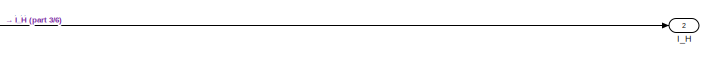
[diagram: root canvas - part 1/6, top center region]
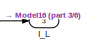
[diagram: root canvas - part 2/6, top right region]
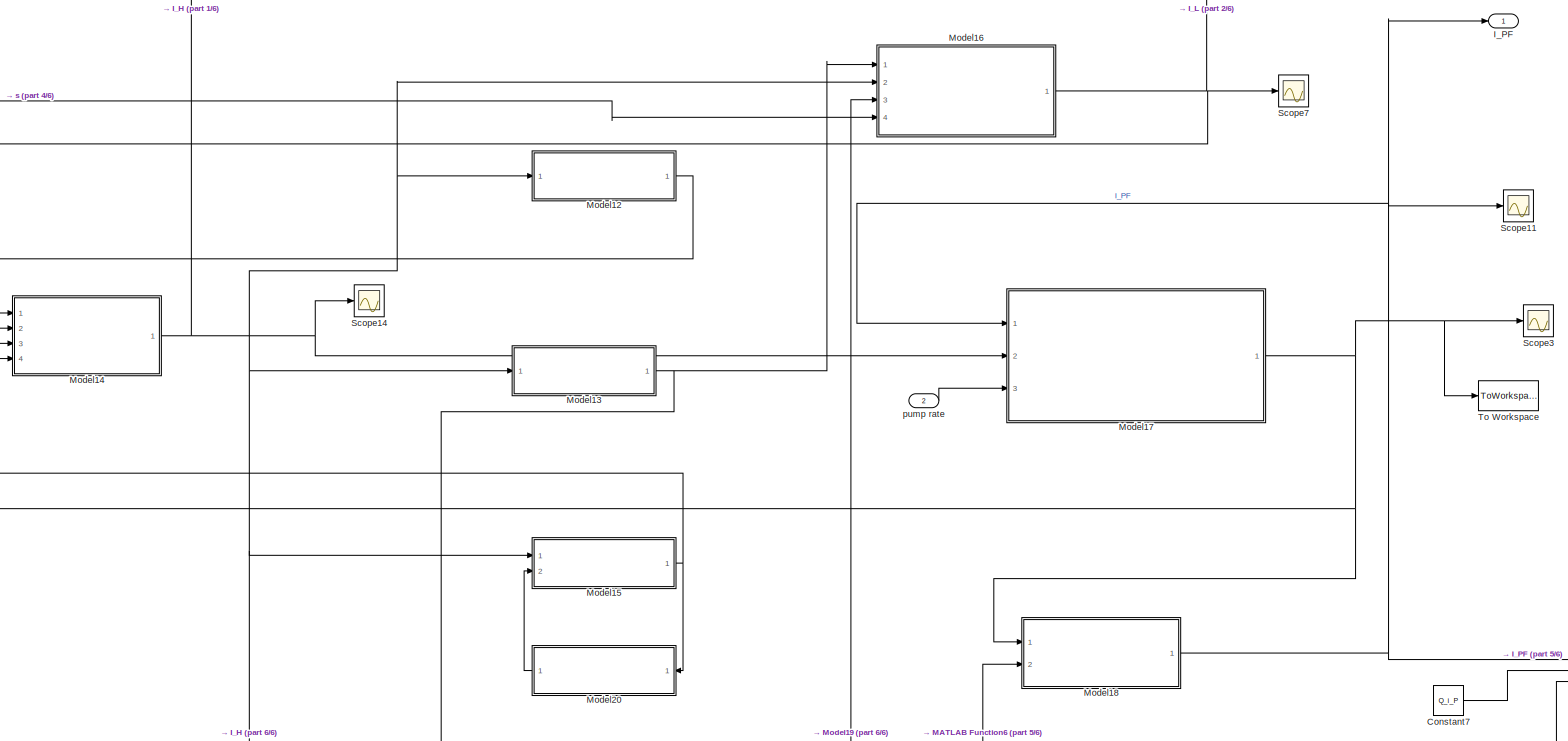
[diagram: root canvas - part 3/6, central region]
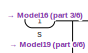
[diagram: root canvas - part 4/6, top left region]
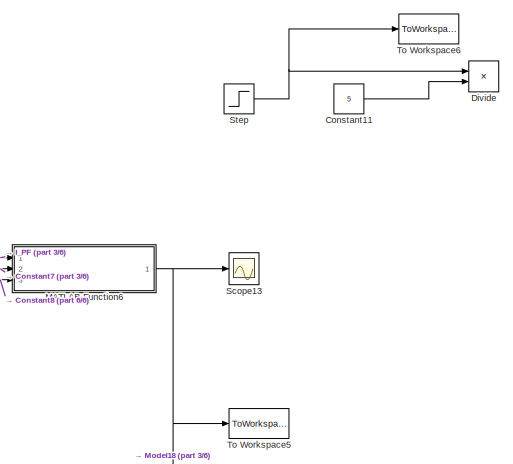
[diagram: root canvas - part 5/6, bottom right region]
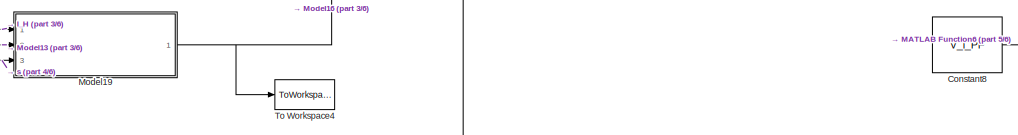
[diagram: root canvas - part 6/6, bottom center region]
MODEL slx_98b3772ca5cc
KIND model
CONFIG AbsTol = auto
CONFIG EnableMultiTasking = off
CONFIG FixedStep = auto
CONFIG MaxStep = auto
CONFIG MinStep = auto
CONFIG RelTol = 1e-3
CONFIG SampleTimeConstraint = Unconstrained
CONFIG Solver = VariableStepAuto
CONFIG SolverName = VariableStepAuto
CONFIG StartTime = 0.0
CONFIG StopTime = 4
BLOCK [Constant] Constant11
  Commented = on
  Value = 5
BLOCK [Constant] Constant7
  Value = Q_i_P
BLOCK [Constant] Constant8
  Value = V_i_PF
BLOCK [Product] Divide
  Commented = on
  InputSameDT = off
  Inputs = */
  OutDataTypeStr = Inherit: Inherit via internal rule
  Ports = [2, 1]
  RndMeth = Floor
  SaturateOnIntegerOverflow = off
BLOCK [Outport] I_H
  IconDisplay = Port number
  OutMin = 0
  Port = 2
BLOCK [Outport] I_L
  IconDisplay = Port number
  Port = 3
BLOCK [Outport] I_PF
  IconDisplay = Port number
  OutMin = 0
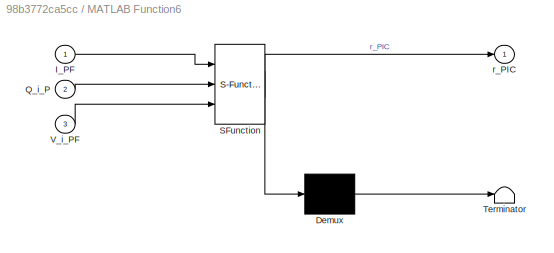
BLOCK [SubSystem] MATLAB Function6
  ErrorFcn = Stateflow.Translate.translate
  PermitHierarchicalResolution = ExplicitOnly
  Ports = [3, 1]
  RequestExecContextInheritance = off
  SFBlockType = MATLAB Function
  TreatAsAtomicUnit = on
BLOCK [Demux] MATLAB Function6/ Demux 
  Outputs = 1
  Ports = [1, 1]
BLOCK [S-Function] MATLAB Function6/ SFunction 
  EnableBusSupport = on
  FunctionName = sf_sfun
  PortCounts = [3 2]
  Ports = [3, 2]
  SFcnIsStateOwnerBlock = off
  SFunctionDeploymentMode = off
  Tag = Stateflow S-Function Insulin_SubsystemReal 7
BLOCK [Terminator] MATLAB Function6/ Terminator 
BLOCK [Inport] MATLAB Function6/I_PF
  IconDisplay = Port number
BLOCK [Inport] MATLAB Function6/Q_i_P
  IconDisplay = Port number
  Port = 2
BLOCK [Inport] MATLAB Function6/V_i_PF
  IconDisplay = Port number
  Port = 3
BLOCK [Outport] MATLAB Function6/r_PIC
  IconDisplay = Port number
BLOCK [ModelReference] Model12
  ModelNameDialog = Brain_Insulin32
  ModelReferenceVersion = 1.3
  Ports = [1, 1]
BLOCK [ModelReference] Model13
  ModelNameDialog = Gastro_Insulin34
  ModelReferenceVersion = 1.3
  Ports = [1, 1]
BLOCK [ModelReference] Model14
  ModelNameDialog = Heart_Insulin33
  ModelReferenceVersion = 1.8
  Ports = [4, 1]
BLOCK [ModelReference] Model15
  ModelNameDialog = Kidney_Insulin36
  ModelReferenceVersion = 1.7
  Ports = [2, 1]
BLOCK [ModelReference] Model16
  ModelNameDialog = Liver_Insulin35
  ModelReferenceVersion = 1.7
  Ports = [4, 1]
BLOCK [ModelReference] Model17
  ModelNameDialog = PeripheralCap_Insulin37
  ModelReferenceVersion = 1.9
  Ports = [3, 1]
BLOCK [ModelReference] Model18
  ModelNameDialog = PeripheralFluid_Insulin38
  ModelReferenceVersion = 1.4
  Ports = [2, 1]
BLOCK [ModelReference] Model19
  ModelNameDialog = r_LIC
  ModelReferenceVersion = 1.2
  Ports = [3, 1]
BLOCK [ModelReference] Model20
  ModelNameDialog = r_KIC
  ModelReferenceVersion = 1.1
  Ports = [1, 1]
BLOCK [Scope] Scope11
  Floating = off
  NumInputPorts = 1
  Ports = [1]
  ScopeSpecificationString = Simulink.scopes.TimeScopeBlockCfg('CurrentConfiguration', extmgr.ConfigurationSet(extmgr.Configuration('Core','General UI',true),extmgr.Configuration('Core','Source UI',true),extmgr.Configuration('Sources','WiredSimulink',true,'DataLoggingVariableName','ScopeData1'),extmgr.Configuration('Visuals','Time Domain',true,'SerializedDisplays',{struct('MinYLimReal','0.91132','MaxYLimReal','7.31418','YLabe...<+1391ch>
BLOCK [Scope] Scope13
  Floating = off
  NumInputPorts = 1
  Ports = [1]
  ScopeSpecificationString = Simulink.scopes.TimeScopeBlockCfg('CurrentConfiguration', extmgr.ConfigurationSet(extmgr.Configuration('Core','General UI',true),extmgr.Configuration('Core','Source UI',true),extmgr.Configuration('Sources','WiredSimulink',true,'DataLoggingVariableName','ScopeData2'),extmgr.Configuration('Visuals','Time Domain',true,'SerializedDisplays',{struct('MinYLimReal','0.37511','MaxYLimReal','3.01061','YLabe...<+1403ch>
BLOCK [Scope] Scope14
  Floating = off
  NumInputPorts = 1
  Ports = [1]
  ScopeSpecificationString = Simulink.scopes.TimeScopeBlockCfg('CurrentConfiguration', extmgr.ConfigurationSet(extmgr.Configuration('Core','General UI',true),extmgr.Configuration('Core','Source UI',true),extmgr.Configuration('Sources','WiredSimulink',true,'DataLoggingVariableName','ScopeData3'),extmgr.Configuration('Visuals','Time Domain',true,'SerializedDisplays',{struct('MinYLimReal','-0.33636','MaxYLimReal','50.86855','YLa...<+1397ch>
BLOCK [Scope] Scope3
  Floating = off
  NumInputPorts = 1
  Ports = [1]
  ScopeSpecificationString = Simulink.scopes.TimeScopeBlockCfg('CurrentConfiguration', extmgr.ConfigurationSet(extmgr.Configuration('Core','General UI',true),extmgr.Configuration('Core','Source UI',true),extmgr.Configuration('Sources','WiredSimulink',true,'DataLoggingVariableName','ScopeData4'),extmgr.Configuration('Visuals','Time Domain',true,'SerializedDisplays',{struct('MinYLimReal','0.58245','MaxYLimReal','28.96694','YLab...<+1394ch>
BLOCK [Scope] Scope7
  Floating = off
  NumInputPorts = 1
  Ports = [1]
  ScopeSpecificationString = Simulink.scopes.TimeScopeBlockCfg('CurrentConfiguration', extmgr.ConfigurationSet(extmgr.Configuration('Core','General UI',true),extmgr.Configuration('Core','Source UI',true),extmgr.Configuration('Sources','WiredSimulink',true),extmgr.Configuration('Visuals','Time Domain',true,'SerializedDisplays',{struct('MinYLimReal','-4.00897','MaxYLimReal','79.19525','YLabelReal','','MinYLimMag','0.00000','Max...<+1360ch>
BLOCK [Step] Step
  After = 8
  Commented = on
  SampleTime = 0
  Time = 800
BLOCK [ToWorkspace] To Workspace
  MaxDataPoints = inf
  Ports = [1]
  SampleTime = -1
  SaveFormat = Structure With Time
  VariableName = Insulin_PC
BLOCK [ToWorkspace] To Workspace4
  MaxDataPoints = inf
  Ports = [1]
  SampleTime = -1
  SaveFormat = Structure With Time
  VariableName = Rate_LIC
BLOCK [ToWorkspace] To Workspace5
  MaxDataPoints = inf
  Ports = [1]
  SampleTime = -1
  SaveFormat = Structure With Time
  VariableName = Rate_PIC
BLOCK [ToWorkspace] To Workspace6
  Commented = on
  MaxDataPoints = inf
  Ports = [1]
  SampleTime = -1
  SaveFormat = Structure With Time
  VariableName = Insulin_Input
BLOCK [Inport] pump rate
  IconDisplay = Port number
  Port = 2
BLOCK [Inport] s
  IconDisplay = Port number
  OutMin = 0
LINE Constant11:1 -> Divide:2
LINE Constant7:1 -> MATLAB Function6:2
LINE Constant8:1 -> MATLAB Function6:3
NET MATLAB Function6:1 -> Model18:2, Scope13:1, To Workspace5:1
LINE Model12:1 -> Model14:4
NET Model13:1 -> Model16:1, Model19:2
NET Model14:1 -> I_H:1, Model12:1, Model13:1, Model15:1, Model16:2, Model17:2, Model19:1, Scope14:1
NET Model15:1 -> Model14:2, Model20:1
NET Model16:1 -> I_L:1, Model14:3, Scope7:1
NET Model17:1 -> Model14:1, Model18:1, Scope3:1, To Workspace:1
NET Model18:1 -> I_PF:1, MATLAB Function6:1, Model17:1, Scope11:1
NET Model19:1 -> Model16:3, To Workspace4:1
LINE Model20:1 -> Model15:2
NET Step:1 -> Divide:1, To Workspace6:1
LINE pump rate:1 -> Model17:3
NET s:1 -> Model16:4, Model19:3
note: NET lines group one-source signal fan-out (src -> all destinations, sorted); 1:1 wires keep LINE
CHART MATLAB Function6 states=1 transitions=1
  STATE_LABEL 'eML_blk_kernel()'
  STATE_LABEL 'SCRIPT:\nfunction r_PIC = fcn(I_PF, Q_i_P, V_i_PF)\nr_PIC=I_PF/(((1-0.15)/(0.15*Q_i_P))-(20/V_i_PF));\n\n'
